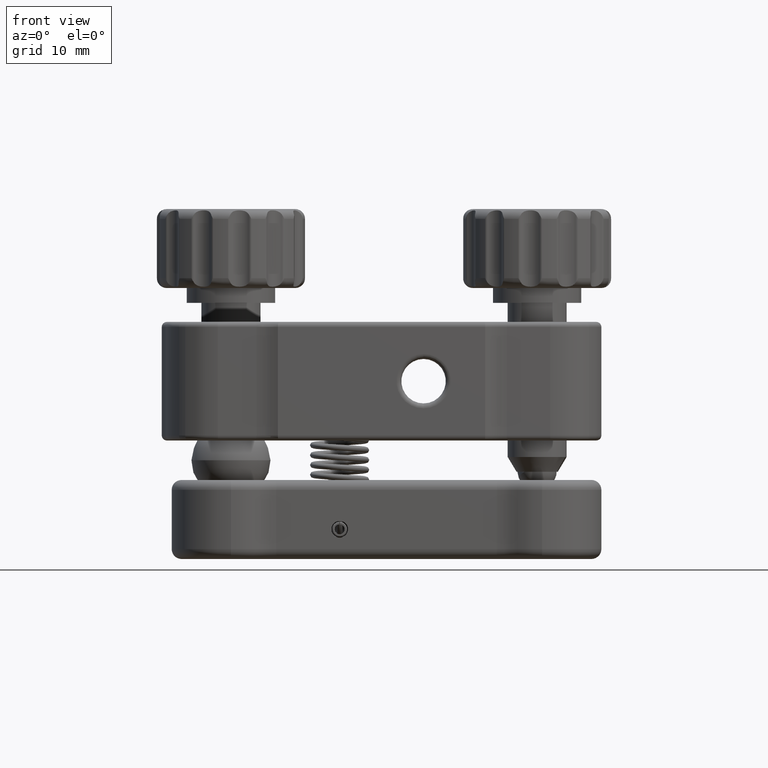
[diagram: clean part render]
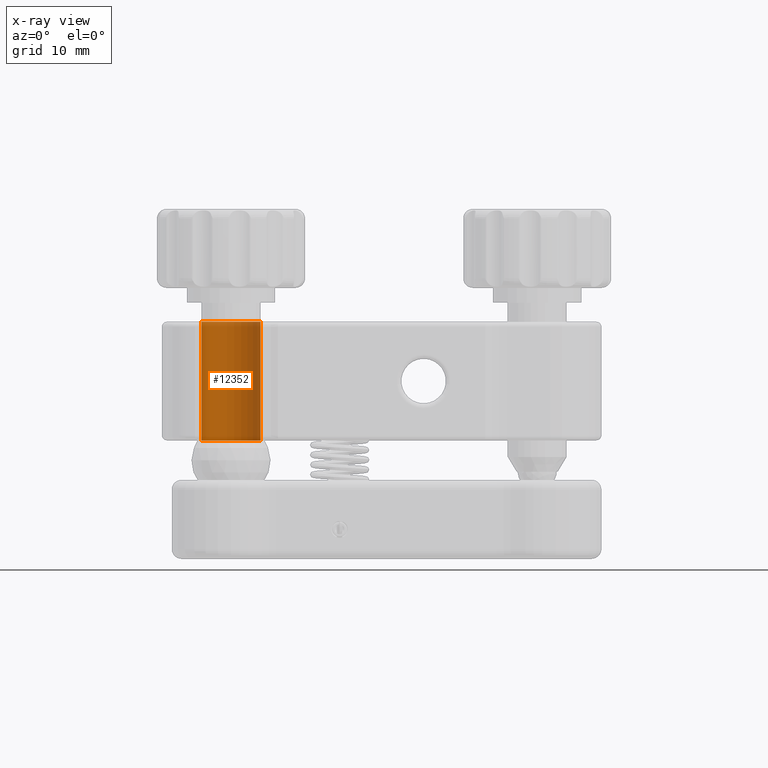
[diagram: x-ray — body ghosted, one internal face saturated and labeled with its STEP entity id]
A machine part, front view, then the same camera in x-ray: the body is ghosted and one INTERNAL B-rep face — a face not visible from any outside direction — is saturated and labeled: STEP entity #12352.
In plain terms, the highlighted cylindrical surface (edge-blend (fillet) strip) has radius 3 mm, axis along (-0, -0, 1).
Its self-contained STEP definition (entity closure, byte-faithful):
#232 = DIRECTION ( 'NONE',  ( 2.196667930119651498E-15, 7.658772681394311567E-16, -1.000000000000000000 ) ) ;
#686 = CARTESIAN_POINT ( 'NONE',  ( 2.999766312332776241, 31.03744424383141265, -5.999999999998609113 ) ) ;
#1086 = EDGE_CURVE ( 'NONE', #12659, #21086, #6564, .T. ) ;
#2125 = LINE ( 'NONE', #4145, #9843 ) ;
#2495 = DIRECTION ( 'NONE',  ( -0.9999221041107770880, -0.01248141461038116025, 2.312964634635720967E-15 ) ) ;
#3464 = CARTESIAN_POINT ( 'NONE',  ( -2.999766312331913820, 30.96255575616912381, -5.999999999998609113 ) ) ;
#3721 = EDGE_LOOP ( 'NONE', ( #24870, #13376, #12569, #16710 ) ) ;
#4145 = CARTESIAN_POINT ( 'NONE',  ( -2.999766312331943574, 30.96255575616912736, -5.999999999998594902 ) ) ;
#4477 = LINE ( 'NONE', #686, #10723 ) ;
#5409 = CARTESIAN_POINT ( 'NONE',  ( -2.999766312331947571, 30.96255575616912381, 6.000000000001064926 ) ) ;
#5550 = VERTEX_POINT ( 'NONE', #24159 ) ;
#5976 = AXIS2_PLACEMENT_3D ( 'NONE', #13618, #15402, #15285 ) ;
#6564 = CIRCLE ( 'NONE', #20766, 3.000000000000028422 ) ;
#8503 = CIRCLE ( 'NONE', #15819, 3.000000000000028422 ) ;
#8856 = EDGE_CURVE ( 'NONE', #12659, #9249, #2125, .T. ) ;
#8884 = CARTESIAN_POINT ( 'NONE',  ( 4.164317653467990592E-13, 31.00000000000027001, -5.999999999998602007 ) ) ;
#9249 = VERTEX_POINT ( 'NONE', #5409 ) ;
#9843 = VECTOR ( 'NONE', #21799, 1000.000000000000000 ) ;
#10085 = CYLINDRICAL_SURFACE ( 'NONE', #5976, 3.000000000000028422 ) ;
#10723 = VECTOR ( 'NONE', #12471, 1000.000000000000000 ) ;
#12352 = ADVANCED_FACE ( 'NONE', ( #17435 ), #10085, .F. ) ;
#12471 = DIRECTION ( 'NONE',  ( -2.196667930119651498E-15, -7.658772681394311567E-16, 1.000000000000000000 ) ) ;
#12569 = ORIENTED_EDGE ( 'NONE', *, *, #23363, .T. ) ;
#12659 = VERTEX_POINT ( 'NONE', #3464 ) ;
#13376 = ORIENTED_EDGE ( 'NONE', *, *, #1086, .T. ) ;
#13618 = CARTESIAN_POINT ( 'NONE',  ( 4.164317653467990592E-13, 31.00000000000027001, -5.999999999998602007 ) ) ;
#15285 = DIRECTION ( 'NONE',  ( 0.9999221041107770880, 0.01248141461038116025, -2.312964634635720967E-15 ) ) ;
#15402 = DIRECTION ( 'NONE',  ( -2.196667930119651498E-15, -7.658772681394311567E-16, 1.000000000000000000 ) ) ;
#15819 = AXIS2_PLACEMENT_3D ( 'NONE', #17729, #232, #2495 ) ;
#16710 = ORIENTED_EDGE ( 'NONE', *, *, #18396, .F. ) ;
#17435 = FACE_OUTER_BOUND ( 'NONE', #3721, .T. ) ;
#17729 = CARTESIAN_POINT ( 'NONE',  ( 3.827968286645893221E-13, 31.00000000000025580, 6.000000000001072031 ) ) ;
#18396 = EDGE_CURVE ( 'NONE', #9249, #5550, #8503, .T. ) ;
#18425 = DIRECTION ( 'NONE',  ( 2.196667930119651498E-15, 7.658772681394311567E-16, -1.000000000000000000 ) ) ;
#20766 = AXIS2_PLACEMENT_3D ( 'NONE', #8884, #18425, #22104 ) ;
#21086 = VERTEX_POINT ( 'NONE', #21488 ) ;
#21488 = CARTESIAN_POINT ( 'NONE',  ( 2.999766312332746931, 31.03744424383140910, -5.999999999998594902 ) ) ;
#21799 = DIRECTION ( 'NONE',  ( -2.196667930119651498E-15, -7.658772681394311567E-16, 1.000000000000000000 ) ) ;
#22104 = DIRECTION ( 'NONE',  ( -0.9999221041107770880, -0.01248141461038116025, 2.312964634635720967E-15 ) ) ;
#23363 = EDGE_CURVE ( 'NONE', #21086, #5550, #4477, .T. ) ;
#24159 = CARTESIAN_POINT ( 'NONE',  ( 2.999766312332713181, 31.03744424383140910, 6.000000000001079137 ) ) ;
#24870 = ORIENTED_EDGE ( 'NONE', *, *, #8856, .F. ) ;